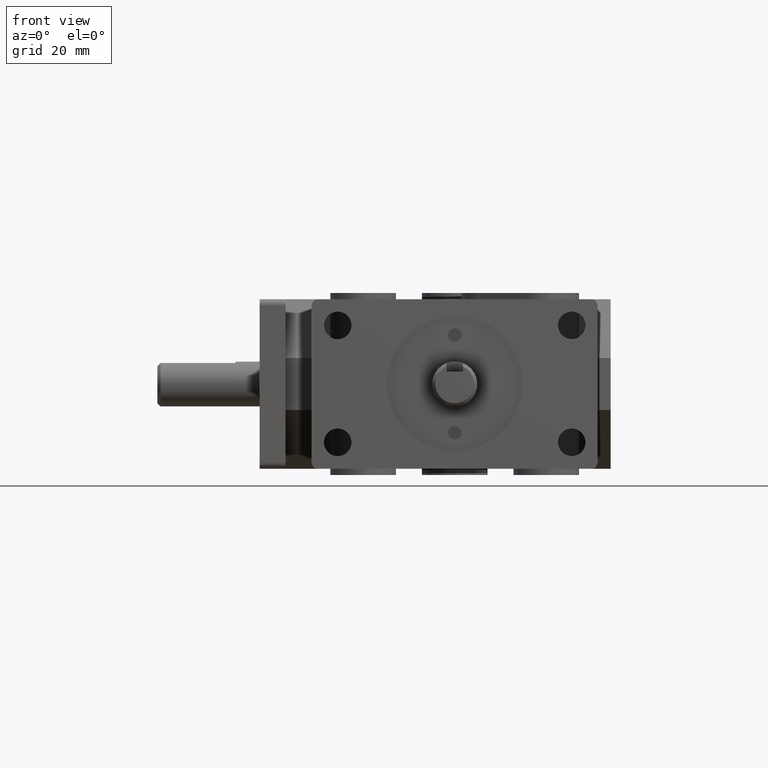
[diagram: clean part render]
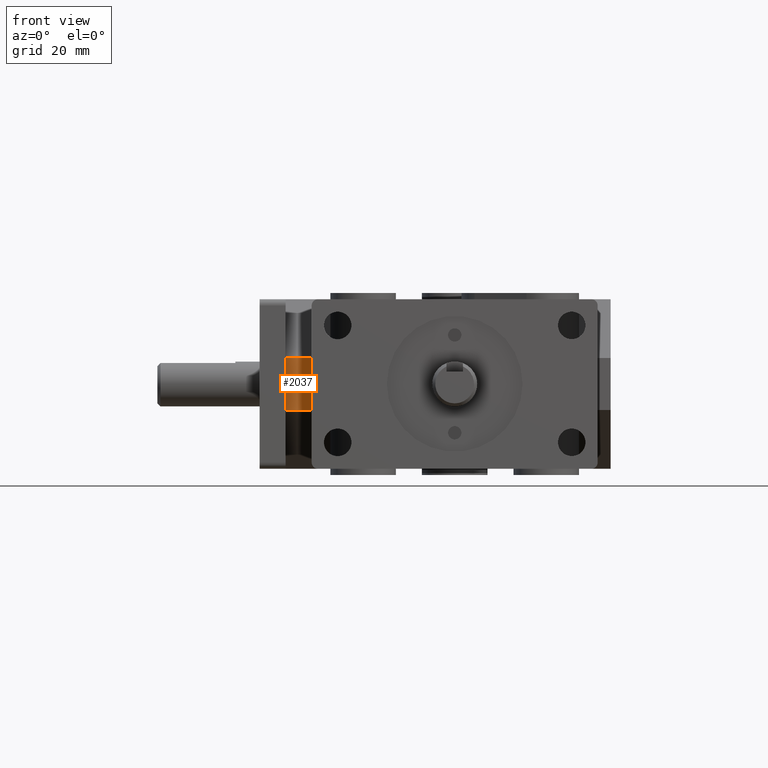
[diagram: same view with one face highlighted and labeled with its STEP entity id]
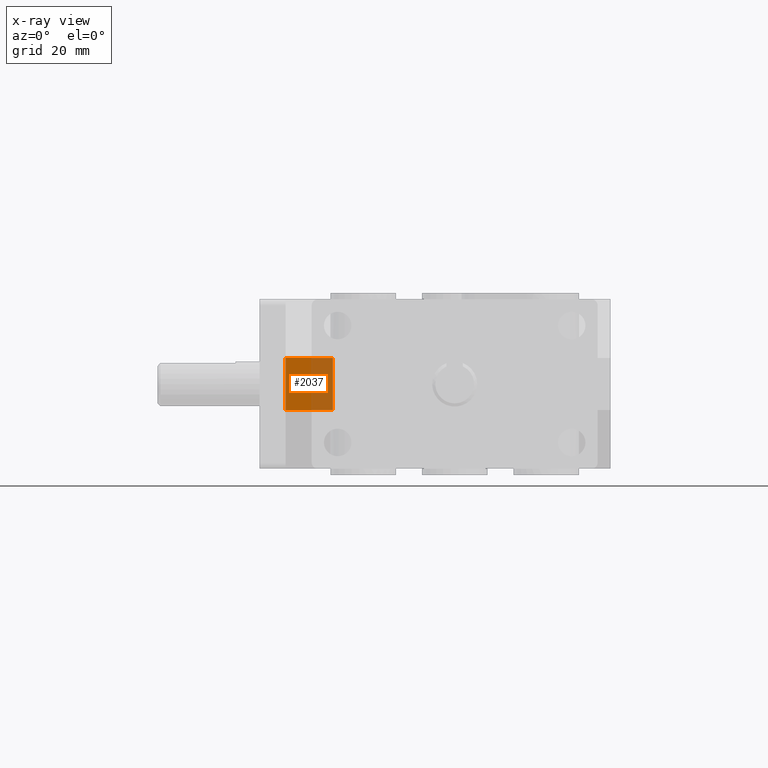
[diagram: x-ray of the same camera — body ghosted, the highlighted face saturated]
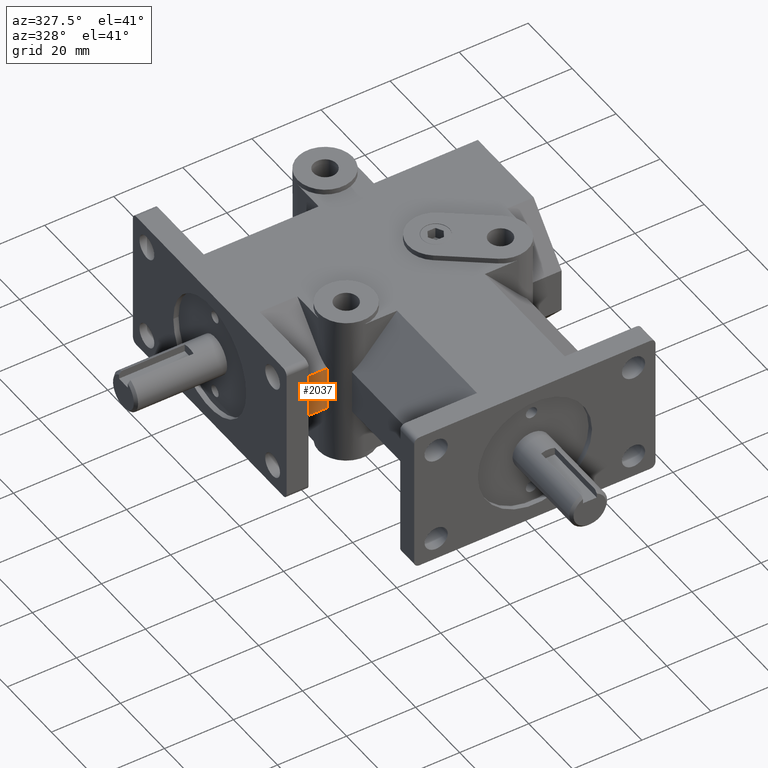
[diagram: same view with one face highlighted and labeled with its STEP entity id]
A machine part, front view. The second image highlights one B-rep face of the part: STEP entity #2037.
The next image is the same camera in x-ray: the body ghosted, the highlighted face saturated — about 45% of this face is hidden behind the body in this view.
A second angle (auxiliary view) of the same face is appended — the face is thin or edge-on in the first view.
In plain terms, the highlighted planar face has unit normal (0, -1, 0).
Its self-contained STEP definition (entity closure, byte-faithful):
#195=FACE_OUTER_BOUND('',#312,.T.);
#312=EDGE_LOOP('',(#1460,#1461,#1462,#1463));
#495=LINE('',#3096,#692);
#501=LINE('',#3116,#698);
#532=LINE('',#3180,#729);
#533=LINE('',#3181,#730);
#692=VECTOR('',#2441,1.);
#698=VECTOR('',#2457,1.);
#729=VECTOR('',#2514,1.);
#730=VECTOR('',#2515,1.);
#898=VERTEX_POINT('',#3093);
#899=VERTEX_POINT('',#3095);
#907=VERTEX_POINT('',#3113);
#908=VERTEX_POINT('',#3115);
#1095=EDGE_CURVE('',#899,#898,#495,.T.);
#1104=EDGE_CURVE('',#908,#907,#501,.T.);
#1141=EDGE_CURVE('',#898,#908,#532,.T.);
#1142=EDGE_CURVE('',#907,#899,#533,.T.);
#1460=ORIENTED_EDGE('',*,*,#1095,.T.);
#1461=ORIENTED_EDGE('',*,*,#1141,.T.);
#1462=ORIENTED_EDGE('',*,*,#1104,.T.);
#1463=ORIENTED_EDGE('',*,*,#1142,.T.);
#1959=PLANE('',#2185);
#2037=ADVANCED_FACE('',(#195),#1959,.T.);
#2185=AXIS2_PLACEMENT_3D('',#3179,#2512,#2513);
#2441=DIRECTION('',(-1.,0.,0.));
#2457=DIRECTION('',(1.,0.,0.));
#2512=DIRECTION('center_axis',(0.,-1.,0.));
#2513=DIRECTION('ref_axis',(0.,0.,1.));
#2514=DIRECTION('',(0.,0.,-1.));
#2515=DIRECTION('',(0.,0.,1.));
#3093=CARTESIAN_POINT('',(-41.275,47.625,6.35));
#3095=CARTESIAN_POINT('',(-29.749681866639,47.625,6.35));
#3096=CARTESIAN_POINT('',(0.,47.625,6.35));
#3113=CARTESIAN_POINT('',(-29.749681866639,47.625,-6.35));
#3115=CARTESIAN_POINT('',(-41.275,47.625,-6.35));
#3116=CARTESIAN_POINT('',(0.,47.625,-6.34999999999999));
#3179=CARTESIAN_POINT('Origin',(-41.275,47.625,0.));
#3180=CARTESIAN_POINT('',(-41.275,47.625,0.));
#3181=CARTESIAN_POINT('',(-29.749681866639,47.625,0.));